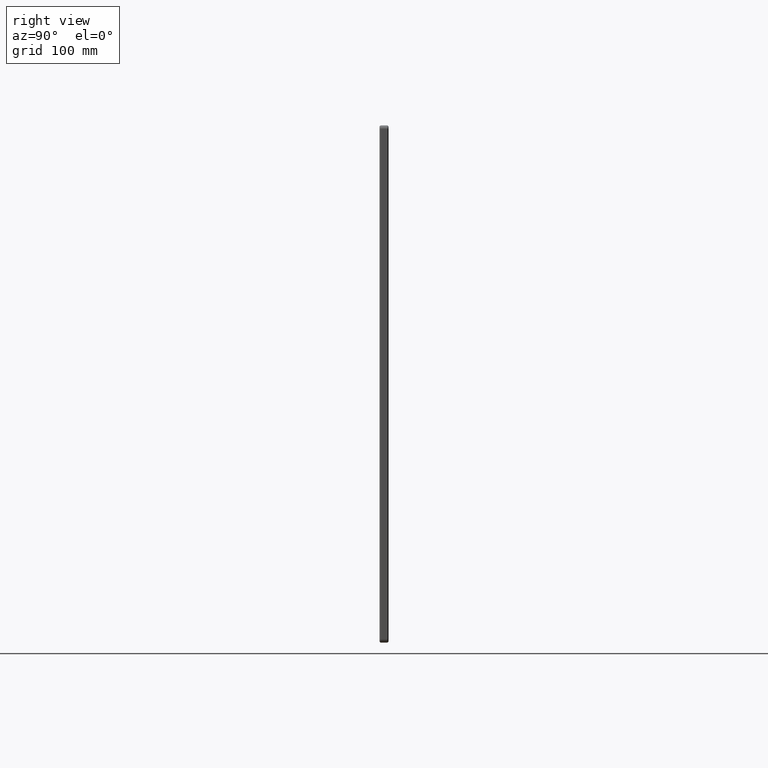
[diagram: clean part render]
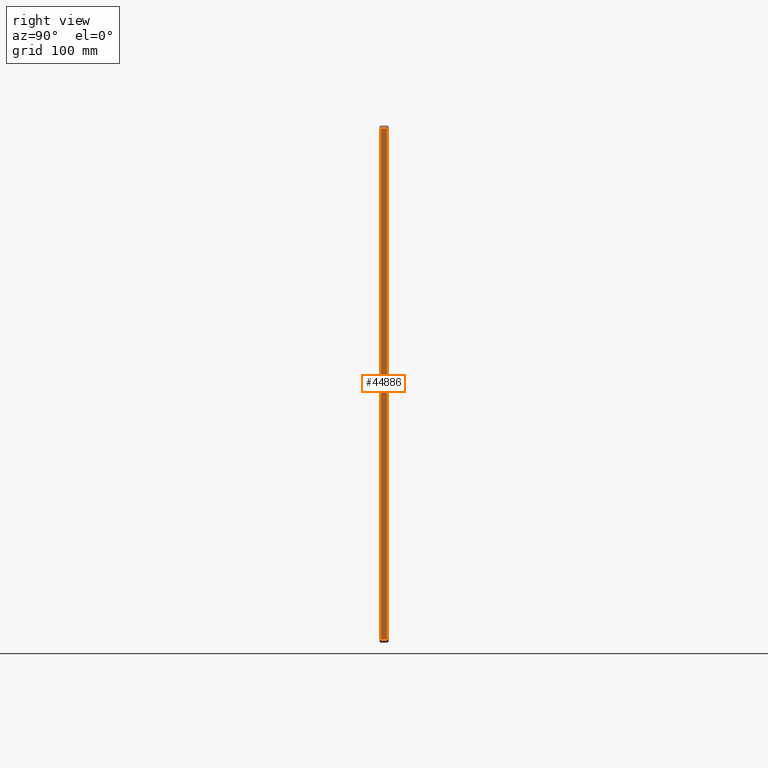
[diagram: same view with one face highlighted and labeled with its STEP entity id]
A machine part, right view. The second image highlights one B-rep face of the part: STEP entity #44886.
In plain terms, the highlighted planar face has unit normal (-1, 0, 0).
Its self-contained STEP definition (entity closure, byte-faithful):
#3374 = VECTOR ( 'NONE', #42786, 1000.000000000000000 ) ;
#4625 = EDGE_CURVE ( 'NONE', #48926, #25744, #37452, .T. ) ;
#9490 = EDGE_CURVE ( 'NONE', #41001, #48926, #63788, .T. ) ;
#10367 = LINE ( 'NONE', #51122, #61115 ) ;
#12007 = DIRECTION ( 'NONE',  ( 0.0000000000000000000, 0.0000000000000000000, -1.000000000000000000 ) ) ;
#14678 = CARTESIAN_POINT ( 'NONE',  ( 374.9999999999997700, 13.00000000000000000, -369.9999999999999400 ) ) ;
#15949 = ORIENTED_EDGE ( 'NONE', *, *, #4625, .T. ) ;
#16376 = FACE_OUTER_BOUND ( 'NONE', #18048, .T. ) ;
#18048 = EDGE_LOOP ( 'NONE', ( #15949, #25311, #61237, #47976 ) ) ;
#20068 = EDGE_CURVE ( 'NONE', #41001, #45915, #29566, .T. ) ;
#20193 = CARTESIAN_POINT ( 'NONE',  ( 374.9999999999997700, 11.00000000000000000, 369.9999999999999400 ) ) ;
#20934 = CARTESIAN_POINT ( 'NONE',  ( 374.9999999999998900, 11.00000000000000000, -369.9999999999999400 ) ) ;
#24544 = DIRECTION ( 'NONE',  ( 0.0000000000000000000, 0.0000000000000000000, 1.000000000000000000 ) ) ;
#25311 = ORIENTED_EDGE ( 'NONE', *, *, #35111, .T. ) ;
#25603 = AXIS2_PLACEMENT_3D ( 'NONE', #14678, #63670, #24544 ) ;
#25744 = VERTEX_POINT ( 'NONE', #43828 ) ;
#27977 = CARTESIAN_POINT ( 'NONE',  ( 374.9999999999998900, 13.00000000000000000, -369.9999999999999400 ) ) ;
#29566 = LINE ( 'NONE', #27977, #3374 ) ;
#31344 = CARTESIAN_POINT ( 'NONE',  ( 374.9999999999997700, 13.00000000000000000, 369.9999999999999400 ) ) ;
#35111 = EDGE_CURVE ( 'NONE', #25744, #45915, #10367, .T. ) ;
#37452 = LINE ( 'NONE', #31344, #47439 ) ;
#41001 = VERTEX_POINT ( 'NONE', #20934 ) ;
#41034 = DIRECTION ( 'NONE',  ( -0.0000000000000000000, -1.000000000000000000, -0.0000000000000000000 ) ) ;
#42786 = DIRECTION ( 'NONE',  ( -0.0000000000000000000, -1.000000000000000000, -0.0000000000000000000 ) ) ;
#43828 = CARTESIAN_POINT ( 'NONE',  ( 374.9999999999997700, 2.000000000000001800, 369.9999999999999400 ) ) ;
#44886 = ADVANCED_FACE ( 'NONE', ( #16376 ), #54011, .F. ) ;
#45915 = VERTEX_POINT ( 'NONE', #58802 ) ;
#47439 = VECTOR ( 'NONE', #41034, 1000.000000000000000 ) ;
#47976 = ORIENTED_EDGE ( 'NONE', *, *, #9490, .T. ) ;
#48926 = VERTEX_POINT ( 'NONE', #62776 ) ;
#51122 = CARTESIAN_POINT ( 'NONE',  ( 374.9999999999997700, 2.000000000000000000, -369.9999999999999400 ) ) ;
#54011 = PLANE ( 'NONE',  #25603 ) ;
#55034 = DIRECTION ( 'NONE',  ( -0.0000000000000000000, -0.0000000000000000000, 1.000000000000000000 ) ) ;
#58802 = CARTESIAN_POINT ( 'NONE',  ( 374.9999999999998900, 2.000000000000003600, -369.9999999999999400 ) ) ;
#61115 = VECTOR ( 'NONE', #12007, 1000.000000000000000 ) ;
#61237 = ORIENTED_EDGE ( 'NONE', *, *, #20068, .F. ) ;
#62244 = VECTOR ( 'NONE', #55034, 1000.000000000000000 ) ;
#62776 = CARTESIAN_POINT ( 'NONE',  ( 374.9999999999997700, 11.00000000000000000, 369.9999999999999400 ) ) ;
#63670 = DIRECTION ( 'NONE',  ( -1.000000000000000000, 0.0000000000000000000, 0.0000000000000000000 ) ) ;
#63788 = LINE ( 'NONE', #20193, #62244 ) ;